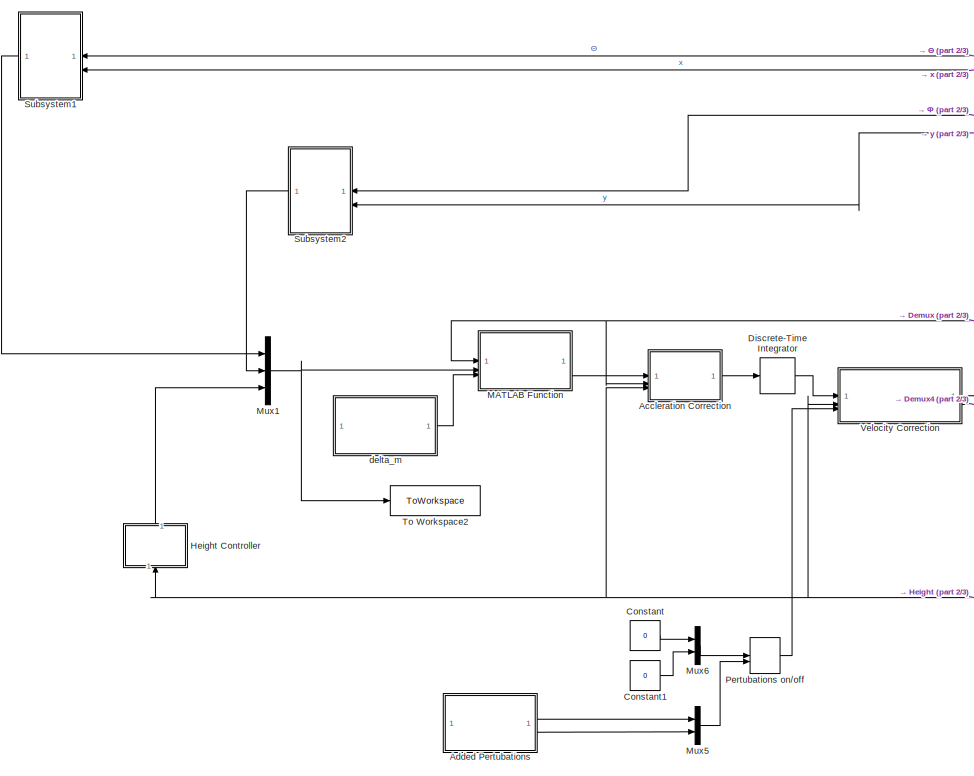
[diagram: root canvas - part 1/3, left side, full height]
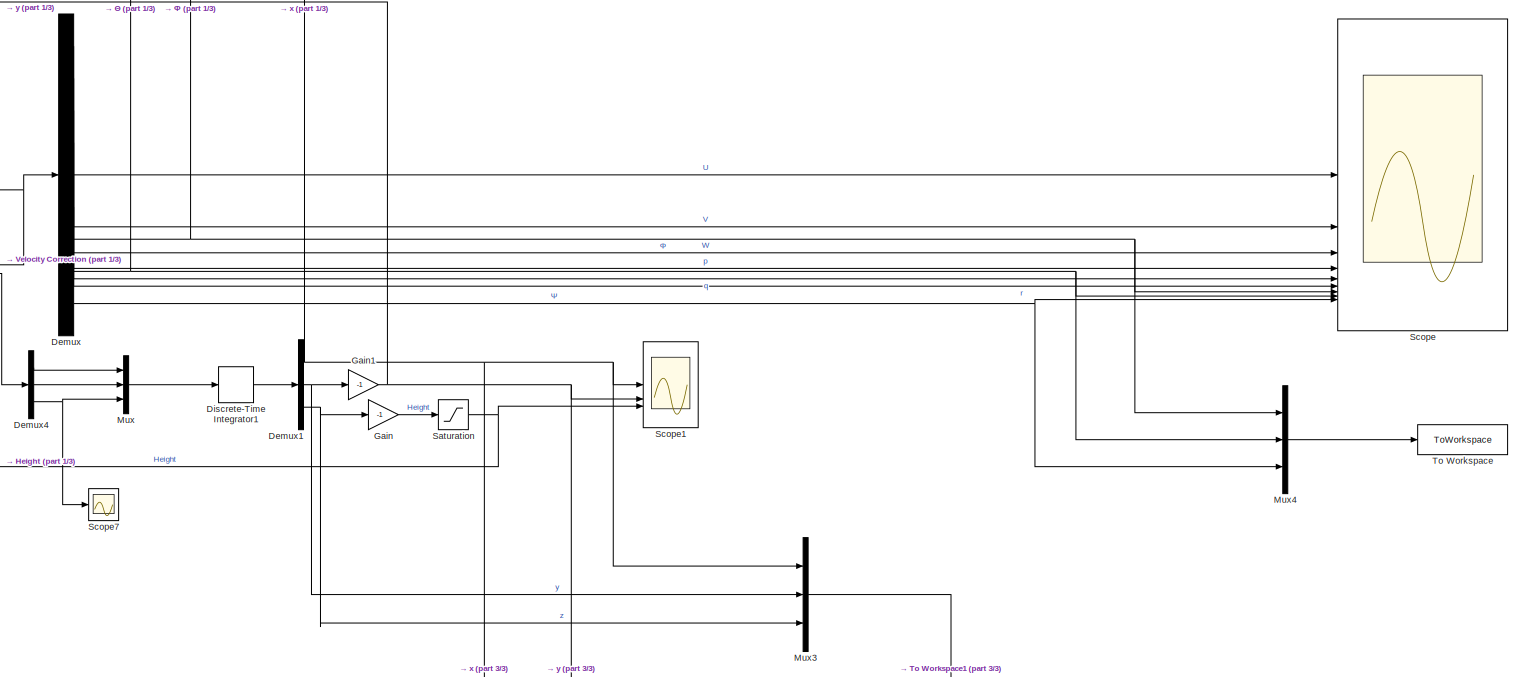
[diagram: root canvas - part 2/3, middle right region]
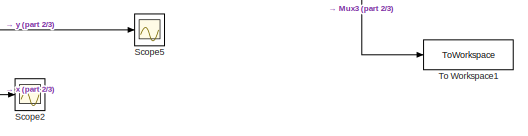
[diagram: root canvas - part 3/3, bottom right region]
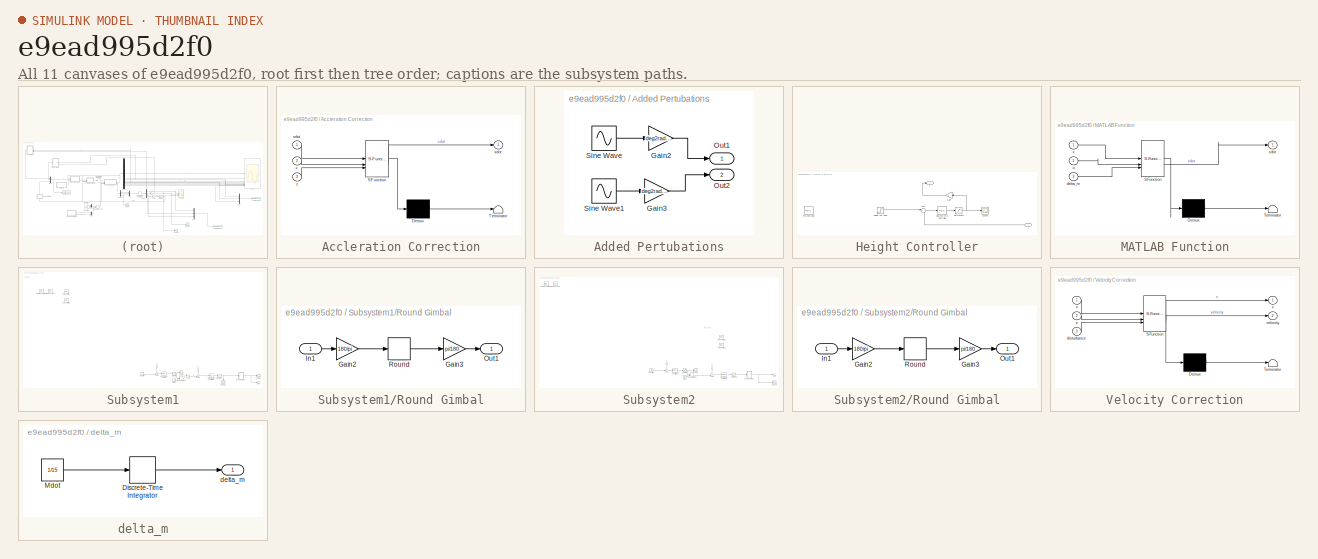
[diagram: thumbnail index - all 11 canvases of the model, root first then tree order]
MODEL slx_e9ead995d2f0
KIND model
CONFIG AbsTol = auto
CONFIG EnableMultiTasking = off
CONFIG FixedStep = auto
CONFIG MaxStep = auto
CONFIG MinStep = auto
CONFIG RelTol = 1e-3
CONFIG SampleTimeConstraint = Unconstrained
CONFIG SolverName = VariableStepAuto
CONFIG StartTime = 0.0
CONFIG StopTime = 300
BLOCK [SubSystem] Accleration Correction
  ErrorFcn = Stateflow.Translate.translate
  PermitHierarchicalResolution = ExplicitOnly
  SFBlockType = MATLAB Function
  TreatAsAtomicUnit = on
BLOCK [Demux] Accleration Correction/ Demux 
  Outputs = 1
BLOCK [S-Function] Accleration Correction/ SFunction 
  EnableBusSupport = off
  FunctionName = sf_sfun
  PortCounts = [3 2]
  SFcnIsStateOwnerBlock = off
  SFunctionDeploymentMode = off
  Tag = Stateflow S-Function 1
BLOCK [Terminator] Accleration Correction/ Terminator 
BLOCK [Inport] Accleration Correction/x
  Port = 2
BLOCK [Outport] Accleration Correction/xdot
BLOCK [Inport] Accleration Correction/xdot 
BLOCK [Inport] Accleration Correction/z
  Port = 3
BLOCK [SubSystem] Added Pertubations
BLOCK [Gain] Added Pertubations/Gain2
  Gain = deg2rad(5)
BLOCK [Gain] Added Pertubations/Gain3
  Gain = deg2rad(5)
BLOCK [Outport] Added Pertubations/Out1
BLOCK [Outport] Added Pertubations/Out2
  Port = 2
BLOCK [Sin] Added Pertubations/Sine Wave
  Frequency = 0.5
  SampleTime = 0
BLOCK [Sin] Added Pertubations/Sine Wave1
  Frequency = 0.5
  SampleTime = 0
BLOCK [Constant] Constant
  Value = 0
BLOCK [Constant] Constant1
  Value = 0
BLOCK [Demux] Demux
  Outputs = 9
BLOCK [Demux] Demux1
  Outputs = 3
BLOCK [Demux] Demux4
  Outputs = 3
BLOCK [DiscreteIntegrator] Discrete-Time Integrator
  ICPrevOutput = DiscIntNeverNeededParam
  ICPrevScaledInput = DiscIntNeverNeededParam
  InitialConditionSetting = Auto
  SampleTime = -1
BLOCK [DiscreteIntegrator] Discrete-Time Integrator1
  ICPrevOutput = DiscIntNeverNeededParam
  ICPrevScaledInput = DiscIntNeverNeededParam
  InitialConditionSetting = Auto
  SampleTime = -1
BLOCK [Gain] Gain
  Gain = -1
BLOCK [Gain] Gain1
  Gain = -1
BLOCK [SubSystem] Height Controller
  NameLocation = right
BLOCK [Reference] Height Controller/Discrete PID Controller  REF=slpidlib/PID Controller
  LibrarySourceBlock = simulink/Discrete/Discrete PID Controller
  SourceBlock = slpidlib/PID Controller
  SourceType = PID 1dof
BLOCK [Gain] Height Controller/Gain
  NameLocation = top
BLOCK [Reference] Height Controller/PID Controller  REF=slpidlib/PID Controller
  LibrarySourceBlock = simulink/Continuous/PID Controller
  SourceBlock = slpidlib/PID Controller
  SourceType = PID 1dof
BLOCK [Saturate] Height Controller/Saturation1
  LowerLimit = 0
  UpperLimit = 1500
BLOCK [Scope] Height Controller/Scope2
  Floating = off
  NumInputPorts = 1
  ScopeSpecificationString = Simulink.scopes.TimeScopeBlockCfg('CurrentConfiguration', extmgr.ConfigurationSet(extmgr.Configuration('Core','General UI',true),extmgr.Configuration('Core','Source UI',true),extmgr.Configuration('Sources','WiredSimulink',true,'DataLoggingVariableName','ScopeData1'),extmgr.Configuration('Visuals','Time Domain',true,'SerializedDisplays',{struct('MinYLimReal','-181.875','MaxYLimReal','1686.875','YLa...<+1444ch>
BLOCK [Sum] Height Controller/Sum
  Inputs = |+-
BLOCK [Outport] Height Controller/T
BLOCK [Step] Height Controller/heighit set point
  After = 100
  SampleTime = 0
BLOCK [Inport] Height Controller/z
BLOCK [SubSystem] MATLAB Function
  ErrorFcn = Stateflow.Translate.translate
  PermitHierarchicalResolution = ExplicitOnly
  SFBlockType = MATLAB Function
  TreatAsAtomicUnit = on
BLOCK [Demux] MATLAB Function/ Demux 
  Outputs = 1
BLOCK [S-Function] MATLAB Function/ SFunction 
  EnableBusSupport = off
  FunctionName = sf_sfun
  PortCounts = [3 2]
  SFcnIsStateOwnerBlock = off
  SFunctionDeploymentMode = off
  Tag = Stateflow S-Function 2
BLOCK [Terminator] MATLAB Function/ Terminator 
BLOCK [Inport] MATLAB Function/delta_m
  Port = 3
BLOCK [Inport] MATLAB Function/u
  Port = 2
BLOCK [Inport] MATLAB Function/x
BLOCK [Outport] MATLAB Function/xdot
BLOCK [Mux] Mux
  DisplayOption = bar
  Inputs = 3
BLOCK [Mux] Mux1
  DisplayOption = bar
  Inputs = 3
BLOCK [Mux] Mux3
  DisplayOption = bar
  Inputs = 3
BLOCK [Mux] Mux4
  DisplayOption = bar
  Inputs = 3
BLOCK [Mux] Mux5
  DisplayOption = bar
  Inputs = 2
BLOCK [Mux] Mux6
  DisplayOption = bar
  Inputs = 2
BLOCK [ManualSwitch] Pertubations on//off
  NameLocation = right
BLOCK [Saturate] Saturation
  LowerLimit = 0
  UpperLimit = 10000
BLOCK [Scope] Scope
  Floating = off
  NumInputPorts = 9
  ScopeSpecificationString = Simulink.scopes.TimeScopeBlockCfg('CurrentConfiguration', extmgr.ConfigurationSet(extmgr.Configuration('Core','General UI',true),extmgr.Configuration('Core','Source UI',true),extmgr.Configuration('Sources','WiredSimulink',true),extmgr.Configuration('Visuals','Time Domain',true,'SerializedDisplays',{struct('MinYLimReal','-3.92994','MaxYLimReal','3.7432','YLabelReal','','MinYLimMag','0.00000','MaxYL...<+6951ch>
BLOCK [Scope] Scope1
  Floating = off
  NumInputPorts = 3
  ScopeSpecificationString = Simulink.scopes.TimeScopeBlockCfg('CurrentConfiguration', extmgr.ConfigurationSet(extmgr.Configuration('Core','General UI',true),extmgr.Configuration('Core','Source UI',true),extmgr.Configuration('Sources','WiredSimulink',true,'DataLoggingVariableName','ScopeData1'),extmgr.Configuration('Visuals','Time Domain',true,'SerializedDisplays',{struct('MinYLimReal','-1.00000','MaxYLimReal','1.00000','YLab...<+1520ch>
BLOCK [Scope] Scope2
  Floating = off
  NumInputPorts = 1
  ScopeSpecificationString = Simulink.scopes.TimeScopeBlockCfg('CurrentConfiguration', extmgr.ConfigurationSet(extmgr.Configuration('Core','General UI',true),extmgr.Configuration('Core','Source UI',true),extmgr.Configuration('Sources','WiredSimulink',true,'DataLoggingVariableName','ScopeData2'),extmgr.Configuration('Visuals','Time Domain',true,'SerializedDisplays',{struct('MinYLimReal','-16.07928','MaxYLimReal','11.49116','YL...<+1470ch>
BLOCK [Scope] Scope5
  Floating = off
  NumInputPorts = 1
  ScopeSpecificationString = Simulink.scopes.TimeScopeBlockCfg('CurrentConfiguration', extmgr.ConfigurationSet(extmgr.Configuration('Core','General UI',true),extmgr.Configuration('Core','Source UI',true),extmgr.Configuration('Sources','WiredSimulink',true,'DataLoggingVariableName','ScopeData3'),extmgr.Configuration('Visuals','Time Domain',true,'SerializedDisplays',{struct('MinYLimReal','-17.31939','MaxYLimReal','22.2376','YLa...<+1401ch>
BLOCK [Scope] Scope7
  Floating = off
  NumInputPorts = 1
  ScopeSpecificationString = Simulink.scopes.TimeScopeBlockCfg('CurrentConfiguration', extmgr.ConfigurationSet(extmgr.Configuration('Core','General UI',true),extmgr.Configuration('Core','Source UI',true),extmgr.Configuration('Sources','WiredSimulink',true,'DataLoggingVariableName','ScopeData2'),extmgr.Configuration('Visuals','Time Domain',true,'SerializedDisplays',{struct('MinYLimReal','-17.47881','MaxYLimReal','2.40503','YLa...<+1426ch>
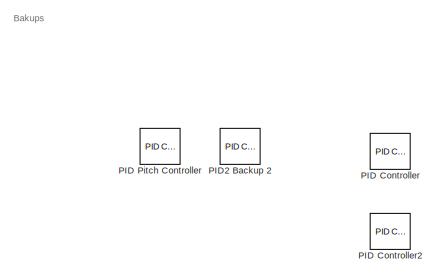
[diagram: Subsystem1 - part 1/2, top left region]
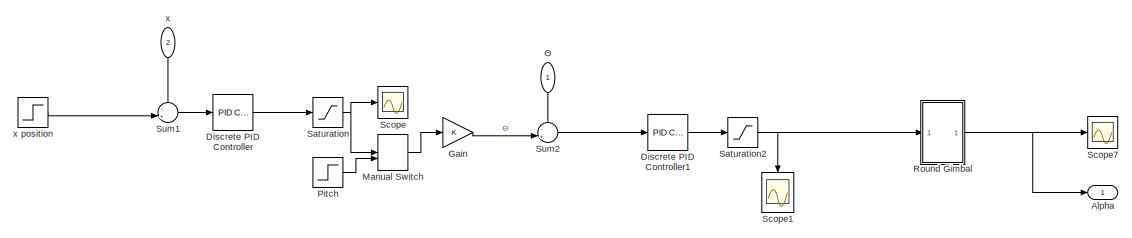
[diagram: Subsystem1 - part 2/2, bottom right region]
BLOCK [SubSystem] Subsystem1
  NameLocation = top
BLOCK [Outport] Subsystem1/Alpha
BLOCK [Reference] Subsystem1/Discrete PID Controller  REF=slpidlib/PID Controller
  LibrarySourceBlock = simulink/Discrete/Discrete PID Controller
  SourceBlock = slpidlib/PID Controller
  SourceType = PID 1dof
BLOCK [Reference] Subsystem1/Discrete PID Controller1  REF=slpidlib/PID Controller
  LibrarySourceBlock = simulink/Discrete/Discrete PID Controller
  SourceBlock = slpidlib/PID Controller
  SourceType = PID 1dof
BLOCK [Gain] Subsystem1/Gain
BLOCK [ManualSwitch] Subsystem1/Manual Switch
BLOCK [Reference] Subsystem1/PID Controller  REF=slpidlib/PID Controller
  LibrarySourceBlock = simulink/Continuous/PID Controller
  SourceBlock = slpidlib/PID Controller
  SourceType = PID 1dof
BLOCK [Reference] Subsystem1/PID Controller2  REF=slpidlib/PID Controller
  LibrarySourceBlock = simulink/Continuous/PID Controller
  SourceBlock = slpidlib/PID Controller
  SourceType = PID 1dof
BLOCK [Reference] Subsystem1/PID Pitch Controller  REF=slpidlib/PID Controller
  LibrarySourceBlock = simulink/Continuous/PID Controller
  SourceBlock = slpidlib/PID Controller
  SourceType = PID 1dof
BLOCK [Reference] Subsystem1/PID2 Backup 2  REF=slpidlib/PID Controller
  LibrarySourceBlock = simulink/Continuous/PID Controller
  SourceBlock = slpidlib/PID Controller
  SourceType = PID 1dof
BLOCK [Step] Subsystem1/Pitch
  After = 0.1745
  SampleTime = 0
BLOCK [SubSystem] Subsystem1/Round Gimbal
  NameLocation = top
BLOCK [Gain] Subsystem1/Round Gimbal/Gain2
  Gain = 180/pi
  NameLocation = top
BLOCK [Gain] Subsystem1/Round Gimbal/Gain3
  Gain = pi/180
  NameLocation = top
BLOCK [Inport] Subsystem1/Round Gimbal/In1
BLOCK [Outport] Subsystem1/Round Gimbal/Out1
BLOCK [Rounding] Subsystem1/Round Gimbal/Round
  NameLocation = top
  Operator = round
BLOCK [Saturate] Subsystem1/Saturation
  LowerLimit = -pi/6
  UpperLimit = pi/6
BLOCK [Saturate] Subsystem1/Saturation2
  LowerLimit = -pi
  UpperLimit = pi
BLOCK [Scope] Subsystem1/Scope
  Floating = off
  NumInputPorts = 1
  ScopeSpecificationString = Simulink.scopes.TimeScopeBlockCfg('CurrentConfiguration', extmgr.ConfigurationSet(extmgr.Configuration('Core','General UI',true),extmgr.Configuration('Core','Source UI',true),extmgr.Configuration('Sources','WiredSimulink',true,'DataLoggingVariableName','ScopeData1'),extmgr.Configuration('Visuals','Time Domain',true,'SerializedDisplays',{struct('MinYLimReal','-0.59015','MaxYLimReal','0.0754','YLabe...<+1435ch>
BLOCK [Scope] Subsystem1/Scope1
  Floating = off
  NameLocation = left
  NumInputPorts = 1
  ScopeSpecificationString = Simulink.scopes.TimeScopeBlockCfg('CurrentConfiguration', extmgr.ConfigurationSet(extmgr.Configuration('Core','General UI',true),extmgr.Configuration('Core','Source UI',true),extmgr.Configuration('Sources','WiredSimulink',true,'DataLoggingVariableName','ScopeData1'),extmgr.Configuration('Visuals','Time Domain',true,'SerializedDisplays',{struct('MinYLimReal','-0.04659','MaxYLimReal','0.18049','YLab...<+1409ch>
BLOCK [Scope] Subsystem1/Scope7
  Floating = off
  NumInputPorts = 1
  ScopeSpecificationString = Simulink.scopes.TimeScopeBlockCfg('CurrentConfiguration', extmgr.ConfigurationSet(extmgr.Configuration('Core','General UI',true),extmgr.Configuration('Core','Source UI',true),extmgr.Configuration('Sources','WiredSimulink',true,'DataLoggingVariableName','ScopeData1'),extmgr.Configuration('Visuals','Time Domain',true,'SerializedDisplays',{struct('MinYLimReal','-0.04642','MaxYLimReal','0.18027','YLab...<+1538ch>
BLOCK [Sum] Subsystem1/Sum1
  Inputs = -+|
BLOCK [Sum] Subsystem1/Sum2
  Inputs = -+|
BLOCK [Inport] Subsystem1/x
  NameLocation = left
  Port = 2
BLOCK [Step] Subsystem1/x position
  After = 2
  SampleTime = 0
BLOCK [Inport] Subsystem1/Θ
  NameLocation = left
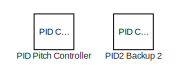
[diagram: Subsystem2 - part 1/3, top left region]
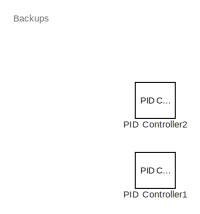
[diagram: Subsystem2 - part 2/3, middle right region]
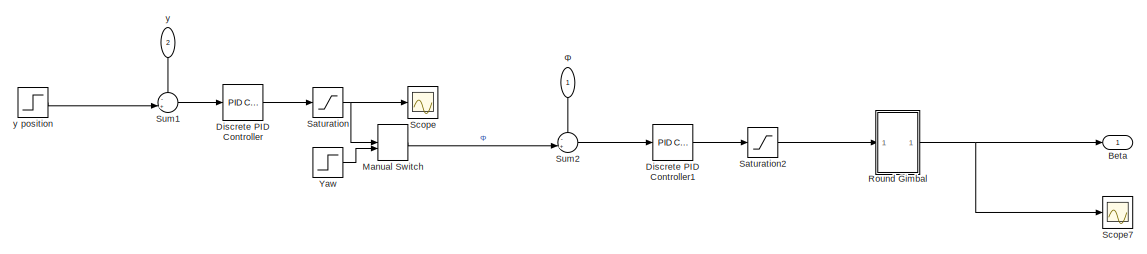
[diagram: Subsystem2 - part 3/3, bottom right region]
BLOCK [SubSystem] Subsystem2
  NameLocation = top
BLOCK [Outport] Subsystem2/Beta
BLOCK [Reference] Subsystem2/Discrete PID Controller  REF=slpidlib/PID Controller
  LibrarySourceBlock = simulink/Discrete/Discrete PID Controller
  SourceBlock = slpidlib/PID Controller
  SourceType = PID 1dof
BLOCK [Reference] Subsystem2/Discrete PID Controller1  REF=slpidlib/PID Controller
  LibrarySourceBlock = hdlsllib/Discrete/Discrete PID Controller
  SourceBlock = slpidlib/PID Controller
  SourceType = PID 1dof
BLOCK [ManualSwitch] Subsystem2/Manual Switch
BLOCK [Reference] Subsystem2/PID Controller1  REF=slpidlib/PID Controller
  LibrarySourceBlock = simulink/Continuous/PID Controller
  SourceBlock = slpidlib/PID Controller
  SourceType = PID 1dof
BLOCK [Reference] Subsystem2/PID Controller2  REF=slpidlib/PID Controller
  LibrarySourceBlock = simulink/Continuous/PID Controller
  SourceBlock = slpidlib/PID Controller
  SourceType = PID 1dof
BLOCK [Reference] Subsystem2/PID Pitch Controller  REF=slpidlib/PID Controller
  LibrarySourceBlock = simulink/Continuous/PID Controller
  SourceBlock = slpidlib/PID Controller
  SourceType = PID 1dof
BLOCK [Reference] Subsystem2/PID2 Backup 2  REF=slpidlib/PID Controller
  LibrarySourceBlock = simulink/Continuous/PID Controller
  SourceBlock = slpidlib/PID Controller
  SourceType = PID 1dof
BLOCK [SubSystem] Subsystem2/Round Gimbal
  NameLocation = top
BLOCK [Gain] Subsystem2/Round Gimbal/Gain2
  Gain = 180/pi
  NameLocation = top
BLOCK [Gain] Subsystem2/Round Gimbal/Gain3
  Gain = pi/180
  NameLocation = top
BLOCK [Inport] Subsystem2/Round Gimbal/In1
BLOCK [Outport] Subsystem2/Round Gimbal/Out1
BLOCK [Rounding] Subsystem2/Round Gimbal/Round
  NameLocation = top
  Operator = round
BLOCK [Saturate] Subsystem2/Saturation
  LowerLimit = -pi/6
  UpperLimit = pi/6
BLOCK [Saturate] Subsystem2/Saturation2
  LowerLimit = -pi
  UpperLimit = pi
BLOCK [Scope] Subsystem2/Scope
  Floating = off
  NumInputPorts = 1
  ScopeSpecificationString = Simulink.scopes.TimeScopeBlockCfg('CurrentConfiguration', extmgr.ConfigurationSet(extmgr.Configuration('Core','General UI',true),extmgr.Configuration('Core','Source UI',true),extmgr.Configuration('Sources','WiredSimulink',true,'DataLoggingVariableName','ScopeData1'),extmgr.Configuration('Visuals','Time Domain',true,'SerializedDisplays',{struct('MinYLimReal','-0.58906','MaxYLimReal','0.06556','YLab...<+1411ch>
BLOCK [Scope] Subsystem2/Scope7
  Floating = off
  NumInputPorts = 1
  ScopeSpecificationString = Simulink.scopes.TimeScopeBlockCfg('CurrentConfiguration', extmgr.ConfigurationSet(extmgr.Configuration('Core','General UI',true),extmgr.Configuration('Core','Source UI',true),extmgr.Configuration('Sources','WiredSimulink',true,'DataLoggingVariableName','ScopeData1'),extmgr.Configuration('Visuals','Time Domain',true,'SerializedDisplays',{struct('MinYLimReal','-0.06802','MaxYLimReal','0.22049','YLab...<+1538ch>
BLOCK [Sum] Subsystem2/Sum1
  Inputs = -+|
BLOCK [Sum] Subsystem2/Sum2
  Inputs = -+|
BLOCK [Step] Subsystem2/Yaw
  After = 0.1745
  SampleTime = 0
BLOCK [Inport] Subsystem2/y
  NameLocation = left
  Port = 2
BLOCK [Step] Subsystem2/y position
  After = 2
  SampleTime = 0
BLOCK [Inport] Subsystem2/Φ
  NameLocation = left
BLOCK [ToWorkspace] To Workspace
  FixptAsFi = on
  MaxDataPoints = inf
  SampleTime = -1
  SaveFormat = Timeseries
  VariableName = euler_angles
BLOCK [ToWorkspace] To Workspace1
  FixptAsFi = on
  MaxDataPoints = inf
  SampleTime = -1
  SaveFormat = Timeseries
  VariableName = position
BLOCK [ToWorkspace] To Workspace2
  FixptAsFi = on
  MaxDataPoints = inf
  SampleTime = -1
  SaveFormat = Timeseries
  VariableName = thrust
BLOCK [SubSystem] Velocity Correction
  ErrorFcn = Stateflow.Translate.translate
  PermitHierarchicalResolution = ExplicitOnly
  SFBlockType = MATLAB Function
  TreatAsAtomicUnit = on
BLOCK [Demux] Velocity Correction/ Demux 
  Outputs = 1
BLOCK [S-Function] Velocity Correction/ SFunction 
  EnableBusSupport = off
  FunctionName = sf_sfun
  PortCounts = [3 3]
  SFcnIsStateOwnerBlock = off
  SFunctionDeploymentMode = off
  Tag = Stateflow S-Function 4
BLOCK [Terminator] Velocity Correction/ Terminator 
BLOCK [Inport] Velocity Correction/disturbance
  Port = 3
BLOCK [Outport] Velocity Correction/velocity
  Port = 2
BLOCK [Outport] Velocity Correction/x
BLOCK [Inport] Velocity Correction/x 
BLOCK [Inport] Velocity Correction/z
  Port = 2
BLOCK [SubSystem] delta_m
BLOCK [DiscreteIntegrator] delta_m/Discrete-Time Integrator
  ICPrevOutput = DiscIntNeverNeededParam
  ICPrevScaledInput = DiscIntNeverNeededParam
  InitialConditionSetting = Auto
  SampleTime = -1
BLOCK [Constant] delta_m/Mdot
  Value = 1/15
BLOCK [Outport] delta_m/delta_m
ANNOTATION Subsystem1: Bakups
ANNOTATION Subsystem2: Backups
LINE Accleration Correction:1 -> Discrete-Time Integrator:1
LINE Added Pertubations/Gain2:1 -> Added Pertubations/Out1:1
LINE Added Pertubations/Gain3:1 -> Added Pertubations/Out2:1
LINE Added Pertubations/Sine Wave1:1 -> Added Pertubations/Gain3:1
LINE Added Pertubations/Sine Wave:1 -> Added Pertubations/Gain2:1
LINE Added Pertubations:1 -> Mux5:1
LINE Added Pertubations:2 -> Mux5:2
LINE Constant1:1 -> Mux6:2
LINE Constant:1 -> Mux6:1
NET Demux1:1 -> Mux3:1, Scope1:1, Scope2:1, Subsystem1:2
NET Demux1:2 -> Gain1:1, Mux3:2
NET Demux1:3 -> Gain:1, Mux3:3
LINE Demux4:1 -> Mux:1
LINE Demux4:2 -> Mux:2
NET Demux4:3 -> Mux:3, Scope7:1
LINE Demux:1 -> Scope:1
LINE Demux:2 -> Scope:2
LINE Demux:3 -> Scope:3
LINE Demux:4 -> Scope:4
LINE Demux:5 -> Scope:5
LINE Demux:6 -> Scope:6
NET Demux:7 -> Mux4:1, Scope:7, Subsystem2:1
NET Demux:8 -> Mux4:2, Scope:8, Subsystem1:1
NET Demux:9 -> Mux4:3, Scope:9
LINE Discrete-Time Integrator1:1 -> Demux1:1
LINE Discrete-Time Integrator:1 -> Velocity Correction:1
NET Gain1:1 -> Scope1:2, Scope5:1, Subsystem2:2
LINE Gain:1 -> Saturation:1
LINE Height Controller/Discrete PID Controller:1 -> Height Controller/Saturation1:1
LINE Height Controller/Gain:1 -> Height Controller/T:1
NET Height Controller/Saturation1:1 -> Height Controller/Gain:1, Height Controller/Scope2:1
LINE Height Controller/Sum:1 -> Height Controller/Discrete PID Controller:1
LINE Height Controller/heighit set point:1 -> Height Controller/Sum:1
LINE Height Controller/z:1 -> Height Controller/Sum:2
LINE Height Controller:1 -> Mux1:3
LINE MATLAB Function:1 -> Accleration Correction:1
NET Mux1:1 -> MATLAB Function:2, To Workspace2:1
LINE Mux3:1 -> To Workspace1:1
LINE Mux4:1 -> To Workspace:1
LINE Mux5:1 -> Pertubations on//off:2
LINE Mux6:1 -> Pertubations on//off:1
LINE Mux:1 -> Discrete-Time Integrator1:1
LINE Pertubations on//off:1 -> Velocity Correction:3
NET Saturation:1 -> Accleration Correction:3, Height Controller:1, Scope1:3, Velocity Correction:2
LINE Subsystem1/Discrete PID Controller1:1 -> Subsystem1/Saturation2:1
LINE Subsystem1/Discrete PID Controller:1 -> Subsystem1/Saturation:1
LINE Subsystem1/Gain:1 -> Subsystem1/Sum2:2
LINE Subsystem1/Manual Switch:1 -> Subsystem1/Gain:1
LINE Subsystem1/Pitch:1 -> Subsystem1/Manual Switch:2
LINE Subsystem1/Round Gimbal/Gain2:1 -> Subsystem1/Round Gimbal/Round:1
LINE Subsystem1/Round Gimbal/Gain3:1 -> Subsystem1/Round Gimbal/Out1:1
LINE Subsystem1/Round Gimbal/In1:1 -> Subsystem1/Round Gimbal/Gain2:1
LINE Subsystem1/Round Gimbal/Round:1 -> Subsystem1/Round Gimbal/Gain3:1
NET Subsystem1/Round Gimbal:1 -> Subsystem1/Alpha:1, Subsystem1/Scope7:1
NET Subsystem1/Saturation2:1 -> Subsystem1/Round Gimbal:1, Subsystem1/Scope1:1
NET Subsystem1/Saturation:1 -> Subsystem1/Manual Switch:1, Subsystem1/Scope:1
LINE Subsystem1/Sum1:1 -> Subsystem1/Discrete PID Controller:1
LINE Subsystem1/Sum2:1 -> Subsystem1/Discrete PID Controller1:1
LINE Subsystem1/x position:1 -> Subsystem1/Sum1:2
LINE Subsystem1/x:1 -> Subsystem1/Sum1:1
LINE Subsystem1/Θ:1 -> Subsystem1/Sum2:1
LINE Subsystem1:1 -> Mux1:1
LINE Subsystem2/Discrete PID Controller1:1 -> Subsystem2/Saturation2:1
LINE Subsystem2/Discrete PID Controller:1 -> Subsystem2/Saturation:1
LINE Subsystem2/Manual Switch:1 -> Subsystem2/Sum2:2
LINE Subsystem2/Round Gimbal/Gain2:1 -> Subsystem2/Round Gimbal/Round:1
LINE Subsystem2/Round Gimbal/Gain3:1 -> Subsystem2/Round Gimbal/Out1:1
LINE Subsystem2/Round Gimbal/In1:1 -> Subsystem2/Round Gimbal/Gain2:1
LINE Subsystem2/Round Gimbal/Round:1 -> Subsystem2/Round Gimbal/Gain3:1
NET Subsystem2/Round Gimbal:1 -> Subsystem2/Beta:1, Subsystem2/Scope7:1
LINE Subsystem2/Saturation2:1 -> Subsystem2/Round Gimbal:1
NET Subsystem2/Saturation:1 -> Subsystem2/Manual Switch:1, Subsystem2/Scope:1
LINE Subsystem2/Sum1:1 -> Subsystem2/Discrete PID Controller:1
LINE Subsystem2/Sum2:1 -> Subsystem2/Discrete PID Controller1:1
LINE Subsystem2/Yaw:1 -> Subsystem2/Manual Switch:2
LINE Subsystem2/y position:1 -> Subsystem2/Sum1:2
LINE Subsystem2/y:1 -> Subsystem2/Sum1:1
LINE Subsystem2/Φ:1 -> Subsystem2/Sum2:1
LINE Subsystem2:1 -> Mux1:2
NET Velocity Correction:1 -> Accleration Correction:2, Demux:1, MATLAB Function:1
LINE Velocity Correction:2 -> Demux4:1
LINE delta_m/Discrete-Time Integrator:1 -> delta_m/delta_m:1
LINE delta_m/Mdot:1 -> delta_m/Discrete-Time Integrator:1
LINE delta_m:1 -> MATLAB Function:3
note: NET lines group one-source signal fan-out (src -> all destinations, sorted); 1:1 wires keep LINE
CHART Accleration Correction states=1 transitions=1
  STATE_LABEL 'eML_blk_kernel()'
  STATE_LABEL 'SCRIPT:\nfunction xdot = fcn(xdot,x, z)\n\nphi=x(7);\ntheta=x(8);\npsi=x(9);\nT_etob=[cos(theta)*cos(psi),cos(theta)*sin(psi),-sin(theta);\n    sin(theta)*sin(phi)*cos(phi)-sin(psi)*cos(phi),sin(psi)*sin(theta)*sin(phi)+cos(psi)*cos(phi), sin(phi)*cos(theta);\n    sin(theta)*cos(phi)*cos(psi)+sin(psi)*sin(phi), sin(phi)*sin(theta)*cos(phi)-cos(psi)*sin(theta), cos(phi)*cos(theta)];\nzddot=xdot(end);\n\nif z ...<+140ch>'
CHART MATLAB Function states=1 transitions=1
  STATE_LABEL 'eML_blk_kernel()'
  STATE_LABEL 'SCRIPT:\nfunction xdot   = fcn(x, u, delta_m)\n%{\nTakes in thrust, angles of thrust, x and outputs xdot\nBody axis is defined as z being the in the direction of gravity when pitch\nis zero\nmass-kg\nI - moment of inertia - kg m^2\ncg - centre of gravity - m\nthrust position - m\n\nx: \nU - body axis x velocity - m/s\nV - body axis y velocity - m/s\nW - body axis z velocity - m/s\np - body axis roll rate - rad/s...<+1929ch>'
CHART Velocity Correction states=1 transitions=1
  STATE_LABEL 'eML_blk_kernel()'
  STATE_LABEL 'SCRIPT:\nfunction [x,velocity] = fcn(x, z,disturbance)\n\nphi=x(7);\ntheta=x(8);\npsi=x(9);\nT_etob=[cos(theta)*cos(psi),cos(theta)*sin(psi),-sin(theta);\n    sin(theta)*sin(phi)*cos(phi)-sin(psi)*cos(phi),sin(psi)*sin(theta)*sin(phi)+cos(psi)*cos(phi), sin(phi)*cos(theta);\n    sin(theta)*cos(phi)*cos(psi)+sin(psi)*sin(phi), sin(phi)*sin(theta)*cos(phi)-cos(psi)*sin(theta), cos(phi)*cos(theta)];\n\nvelocit...<+230ch>'
CHART  states=0 transitions=0
CHART  states=0 transitions=0
CHART  states=0 transitions=0
